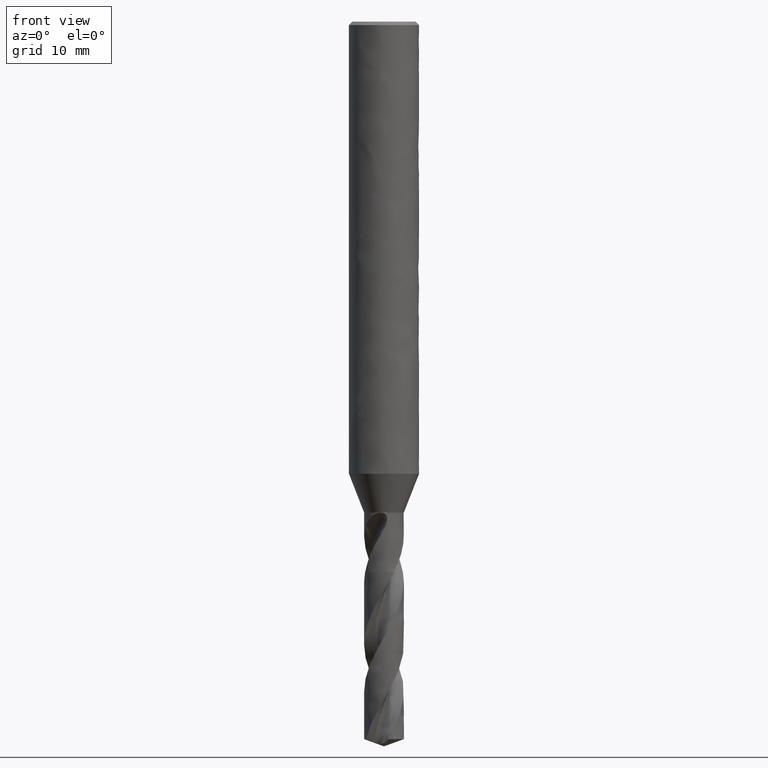
[diagram: clean part render]
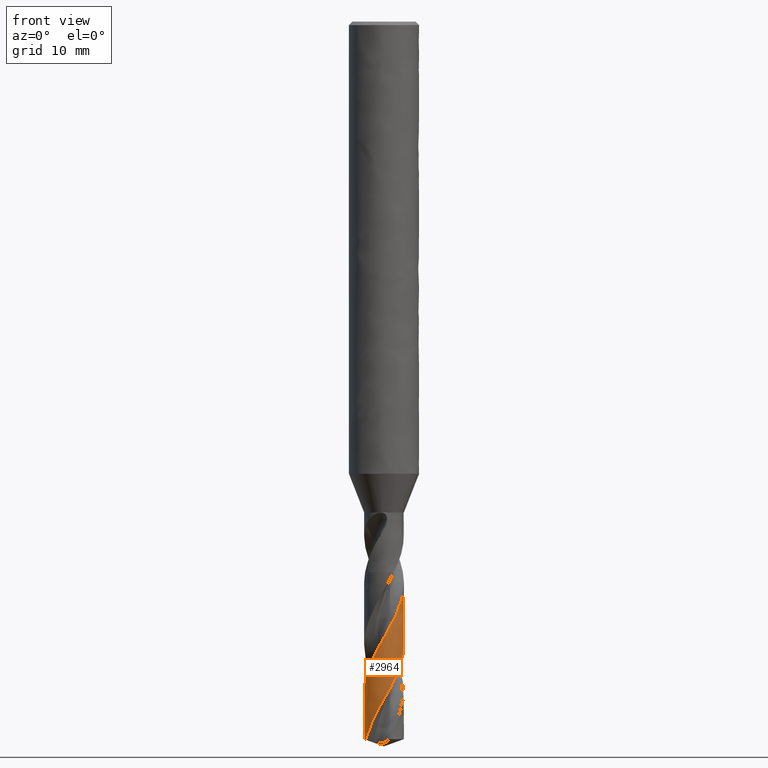
[diagram: same view with one face highlighted and labeled with its STEP entity id]
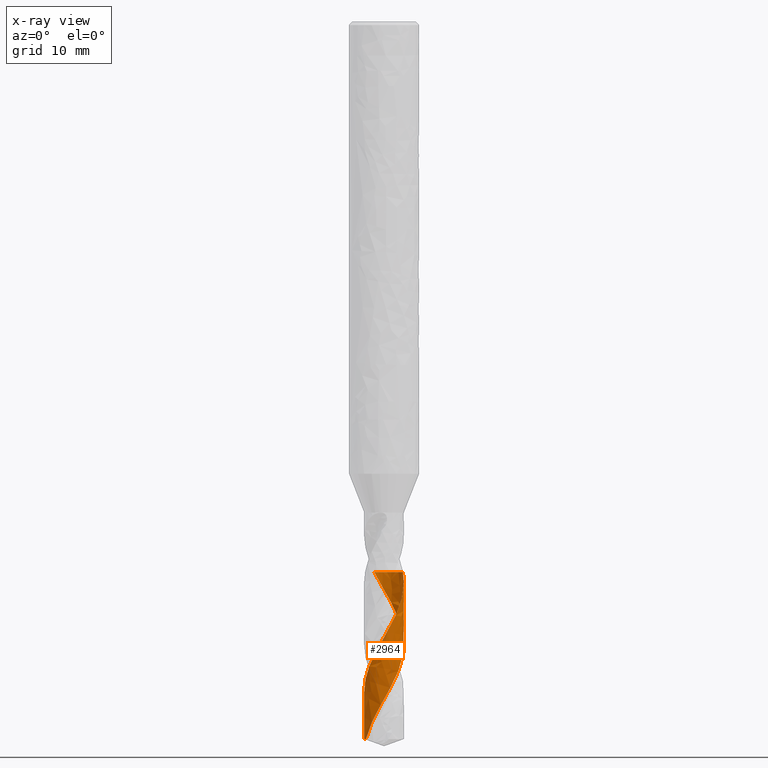
[diagram: x-ray of the same camera — body ghosted, the highlighted face saturated]
A machine part, front view. The second image highlights one B-rep face of the part: STEP entity #2964.
The next image is the same camera in x-ray: the body ghosted, the highlighted face saturated — about 0% of this face is hidden behind the body in this view.
In plain terms, the highlighted face is a freeform B-spline surface patch.
Its self-contained STEP definition (entity closure, byte-faithful):
#1735 = VERTEX_POINT('', #1736);
#1736 = CARTESIAN_POINT('', (1.61794167034545, 0.521789949462205, -47.1));
#1788 = EDGE_CURVE('', #1789, #1735, #1791, .T.);
#1789 = VERTEX_POINT('', #1790);
#1790 = CARTESIAN_POINT('', (-0.83333927921232, 1.48173737407209, -47.1));
#1791 = CIRCLE('', #1792, 1.7);
#1792 = AXIS2_PLACEMENT_3D('', #1793, #1794, #1795);
#1793 = CARTESIAN_POINT('', (1.76596714408434E-31, 2.88404321199202E-15, -47.1));
#1794 = DIRECTION('', (3.74939945665464E-33, 6.12323399573677E-17, -1.));
#1795 = DIRECTION('', (-1., 6.12323399573677E-17, 0.));
#2703 = EDGE_CURVE('', #2704, #1789, #2706, .T.);
#2704 = VERTEX_POINT('', #2705);
#2705 = CARTESIAN_POINT('', (-1.54745613297842, -0.703832022934077, -61.3812506017475));
#2706 = B_SPLINE_CURVE_WITH_KNOTS('', 3, (#2707, #2708, #2709, #2710, #2711, #2712, #2713, #2714, #2715, #2716, #2717, #2718, #2719, #2720, #2721, #2722, #2723, #2724, #2725, #2726, #2727, #2728, #2729, #2730, #2731, #2732, #2733, #2734, #2735, #2736, #2737, #2738, #2739, #2740, #2741, #2742, #2743, #2744, #2745, #2746, #2747, #2748, #2749, #2750, #2751, #2752, #2753, #2754, #2755, #2756, #2757, #2758, #2759, #2760, #2761, #2762, #2763, #2764, #2765, #2766, #2767, #2768, #2769, #2770, #2771, #2772, #2773, #2774, #2775, #2776, #2777, #2778, #2779, #2780, #2781, #2782, #2783, #2784, #2785, #2786, #2787, #2788, #2789, #2790, #2791, #2792, #2793, #2794, #2795, #2796, #2797, #2798, #2799, #2800, #2801, #2802, #2803, #2804, #2805, #2806, #2807, #2808, #2809, #2810, #2811, #2812, #2813, #2814, #2815, #2816, #2817, #2818, #2819, #2820, #2821, #2822, #2823, #2824, #2825, #2826, #2827, #2828, #2829, #2830, #2831, #2832, #2833, #2834, #2835, #2836), .UNSPECIFIED., .F., .U., (4, 3, 3, 3, 3, 3, 3, 3, 3, 3, 3, 3, 3, 3, 3, 3, 3, 3, 3, 3, 3, 3, 3, 3, 3, 3, 3, 3, 3, 3, 3, 3, 3, 3, 3, 3, 3, 3, 3, 3, 3, 3, 3, 4), (0., 0.443855790502764, 0.887479978240724, 1.3308775704706, 1.77405175161669, 2.21700390870566, 2.65973327549885, 3.10223721717116, 3.5445113162908, 3.83951307066638, 3.92703653370086, 3.9659660523632, 4.41064252871552, 4.85505149494598, 5.29920647054006, 5.74311807012562, 6.18679437768886, 6.63024095143792, 7.07346128847012, 7.51645706532043, 7.95922814347862, 8.40177239835613, 8.84408561522052, 9.28616162750826, 9.32507475129174, 9.76977848595117, 10.2142110750444, 10.658386380776, 11.1023152763683, 11.5460060314761, 11.9894645451014, 12.4326944599591, 12.8756975283897, 13.318473651278, 13.7610208179025, 14.2033349138989, 14.6454097533524, 14.6843224505492, 14.7232480170564, 15.1679462903109, 15.6123713601812, 16.0565379813851, 16.3523824521783, 16.4435746321485), .UNSPECIFIED.);
#2707 = CARTESIAN_POINT('', (-1.54745613297842, -0.703832022934077, -61.3812506017475));
#2708 = CARTESIAN_POINT('', (-1.51719500136275, -0.770364621883359, -61.2526137064541));
#2709 = CARTESIAN_POINT('', (-1.48261573489812, -0.834982129498396, -61.1239159264737));
#2710 = CARTESIAN_POINT('', (-1.44403775757455, -0.897081353445189, -60.9952877814543));
#2711 = CARTESIAN_POINT('', (-1.40547991013641, -0.959148174182953, -60.866726754257));
#2712 = CARTESIAN_POINT('', (-1.36288876155964, -1.01876174480711, -60.7381048688128));
#2713 = CARTESIAN_POINT('', (-1.31665816858338, -1.07536564344536, -60.6095526752042));
#2714 = CARTESIAN_POINT('', (-1.27045118938877, -1.13194062979812, -60.481066143817));
#2715 = CARTESIAN_POINT('', (-1.22056236520932, -1.18556550802107, -60.3525186248025));
#2716 = CARTESIAN_POINT('', (-1.16745314445573, -1.23573992227346, -60.224040838472));
#2717 = CARTESIAN_POINT('', (-1.1143706834067, -1.28588905555802, -60.0956277871828));
#2718 = CARTESIAN_POINT('', (-1.05801812044709, -1.33264119179291, -59.9671538466761));
#2719 = CARTESIAN_POINT('', (-0.998917343973153, -1.37555957337718, -59.8387493852117));
#2720 = CARTESIAN_POINT('', (-0.939846176160388, -1.41845645345345, -59.7104092525838));
#2721 = CARTESIAN_POINT('', (-0.877970050105777, -1.4575665908223, -59.5820084843424));
#2722 = CARTESIAN_POINT('', (-0.813862629132365, -1.49252390965832, -59.453677041329));
#2723 = CARTESIAN_POINT('', (-0.749787452073, -1.52746364611828, -59.3254101447902));
#2724 = CARTESIAN_POINT('', (-0.683418610607546, -1.55828998206004, -59.1970826244874));
#2725 = CARTESIAN_POINT('', (-0.615371266234494, -1.58471391888034, -59.068824506875));
#2726 = CARTESIAN_POINT('', (-0.54735856962141, -1.61112440138837, -58.9406316946248));
#2727 = CARTESIAN_POINT('', (-0.477601023925604, -1.63316341553257, -58.8123781193028));
#2728 = CARTESIAN_POINT('', (-0.40674471245827, -1.65062374237374, -58.6841940418543));
#2729 = CARTESIAN_POINT('', (-0.335925204720724, -1.66807500008419, -58.5560765449551));
#2730 = CARTESIAN_POINT('', (-0.263937543021006, -1.68096969858798, -58.427898286923));
#2731 = CARTESIAN_POINT('', (-0.191448538687783, -1.68918544187259, -58.299789396144));
#2732 = CARTESIAN_POINT('', (-0.143097564724338, -1.69466543422865, -58.214339337897));
#2733 = CARTESIAN_POINT('', (-0.0944969894662876, -1.69806914814064, -58.1288718363193));
#2734 = CARTESIAN_POINT('', (-0.0458473214287625, -1.69938165905073, -58.0434256745049));
#2735 = CARTESIAN_POINT('', (-0.0314135515986989, -1.69977106520991, -58.018074828708));
#2736 = CARTESIAN_POINT('', (-0.0169742386634315, -1.69997658123994, -57.9927236467865));
#2737 = CARTESIAN_POINT('', (-0.00253467222448865, -1.69999811042151, -57.967373120385));
#2738 = CARTESIAN_POINT('', (0.00388789552673641, -1.70000768637573, -57.9560974720454));
#2739 = CARTESIAN_POINT('', (0.0103105966062796, -1.6999808653333, -57.9448218099934));
#2740 = CARTESIAN_POINT('', (0.0167329719644538, -1.6999176473139, -57.9335462252219));
#2741 = CARTESIAN_POINT('', (0.0900932225459315, -1.69919553291134, -57.8047496852883));
#2742 = CARTESIAN_POINT('', (0.163451866771738, -1.69371426206621, -57.6758915370366));
#2743 = CARTESIAN_POINT('', (0.236119869536242, -1.68352232156598, -57.5471037960186));
#2744 = CARTESIAN_POINT('', (0.308744156414456, -1.67333651237108, -57.4183935316069));
#2745 = CARTESIAN_POINT('', (0.380752534179919, -1.65843535246851, -57.2896216053559));
#2746 = CARTESIAN_POINT('', (0.451469227871898, -1.63895562364723, -57.1609201705668));
#2747 = CARTESIAN_POINT('', (0.522145505237029, -1.61948702796928, -57.0322922918079));
#2748 = CARTESIAN_POINT('', (0.591602962531438, -1.59542544421399, -56.9036026643536));
#2749 = CARTESIAN_POINT('', (0.659190180338104, -1.56699339696944, -56.7749835356342));
#2750 = CARTESIAN_POINT('', (0.726740363532526, -1.53857692914774, -56.6464348841399));
#2751 = CARTESIAN_POINT('', (0.792490520582058, -1.5057660888902, -56.517824588984));
#2752 = CARTESIAN_POINT('', (0.855823658840124, -1.46886550268209, -56.3892845600827));
#2753 = CARTESIAN_POINT('', (0.919123227842073, -1.43198447535363, -56.260812662862));
#2754 = CARTESIAN_POINT('', (0.980072715375369, -1.39098050176546, -56.1322793443006));
#2755 = CARTESIAN_POINT('', (1.03809972196134, -1.346235108465, -56.0038161578495));
#2756 = CARTESIAN_POINT('', (1.09609668239583, -1.30151288414989, -55.8754194891216));
#2757 = CARTESIAN_POINT('', (1.15123322869522, -1.25300759473408, -55.7469614110329));
#2758 = CARTESIAN_POINT('', (1.20299156890888, -1.20117079765292, -55.6185735222176));
#2759 = CARTESIAN_POINT('', (1.25472350315245, -1.14936044656882, -55.4902511340876));
#2760 = CARTESIAN_POINT('', (1.30313301287765, -1.09416959305976, -55.3618672328411));
#2761 = CARTESIAN_POINT('', (1.34776553794473, -1.03611198947245, -55.2335535813177));
#2762 = CARTESIAN_POINT('', (1.39237544968134, -0.978083801110327, -55.105304940658));
#2763 = CARTESIAN_POINT('', (1.43325716105305, -0.917133272083846, -54.9769948080813));
#2764 = CARTESIAN_POINT('', (1.47002641263872, -0.853828054203264, -54.8487547978359));
#2765 = CARTESIAN_POINT('', (1.50677701392754, -0.790554946334571, -54.7205798341759));
#2766 = CARTESIAN_POINT('', (1.53945652113562, -0.724865450716122, -54.5923435551941));
#2767 = CARTESIAN_POINT('', (1.56775706204456, -0.657371884407525, -54.4641772098654));
#2768 = CARTESIAN_POINT('', (1.59604310511962, -0.58991289378124, -54.3360765217405));
#2769 = CARTESIAN_POINT('', (1.61998344052576, -0.520583041336398, -54.207914637816));
#2770 = CARTESIAN_POINT('', (1.63935175979428, -0.450028674264102, -54.0798226730291));
#2771 = CARTESIAN_POINT('', (1.658709967491, -0.37951114134027, -53.9517975809056));
#2772 = CARTESIAN_POINT('', (1.67352056070708, -0.307698923098715, -53.8237112154031));
#2773 = CARTESIAN_POINT('', (1.68364254520465, -0.235261088956103, -53.6956948395652));
#2774 = CARTESIAN_POINT('', (1.69375910146504, -0.162862101913522, -53.5677471165939));
#2775 = CARTESIAN_POINT('', (1.69920227729253, -0.0897651915333878, -53.4397380886192));
#2776 = CARTESIAN_POINT('', (1.6999184502683, -0.0166511992788236, -53.3117990051389));
#2777 = CARTESIAN_POINT('', (1.69998149039462, -0.0102154421876785, -53.3005373459359));
#2778 = CARTESIAN_POINT('', (1.70000798282907, -0.00377924503434388, -53.2892756743182));
#2779 = CARTESIAN_POINT('', (1.69999792374985, 0.00265692419919436, -53.2780140787025));
#2780 = CARTESIAN_POINT('', (1.69988296741479, 0.0762102197655079, -53.1493152454662));
#2781 = CARTESIAN_POINT('', (1.69498431881302, 0.149801539334368, -53.0205540690697));
#2782 = CARTESIAN_POINT('', (1.6853452727004, 0.222735968777526, -52.8918639452379));
#2783 = CARTESIAN_POINT('', (1.67571210372443, 0.295625928508315, -52.7632522865814));
#2784 = CARTESIAN_POINT('', (1.66133440236526, 0.367934791998575, -52.6345784001286));
#2785 = CARTESIAN_POINT('', (1.6423448666304, 0.438979884565264, -52.5059755414076));
#2786 = CARTESIAN_POINT('', (1.62336632399485, 0.509983848914337, -52.377447131268));
#2787 = CARTESIAN_POINT('', (1.59976185567669, 0.579798249884648, -52.24885643421));
#2788 = CARTESIAN_POINT('', (1.57175102107992, 0.647764407585247, -52.1203368061391));
#2789 = CARTESIAN_POINT('', (1.54375572573886, 0.715692860464867, -51.991888475457));
#2790 = CARTESIAN_POINT('', (1.51133039122006, 0.781844419266338, -51.8633778557364));
#2791 = CARTESIAN_POINT('', (1.47477761781724, 0.845595043732699, -51.7349382295941));
#2792 = CARTESIAN_POINT('', (1.4382444527239, 0.909311469919226, -51.6065675033929));
#2793 = CARTESIAN_POINT('', (1.39755091374562, 0.970694658398143, -51.4781346251095));
#2794 = CARTESIAN_POINT('', (1.35307761437078, 1.02916518085712, -51.3497725508461));
#2795 = CARTESIAN_POINT('', (1.30862759369819, 1.0876050980338, -51.2214776652677));
#2796 = CARTESIAN_POINT('', (1.26035609232826, 1.1431954304642, -51.093120774665));
#2797 = CARTESIAN_POINT('', (1.20871510618999, 1.19541113934417, -50.9648346327018));
#2798 = CARTESIAN_POINT('', (1.15710074050307, 1.24759993150853, -50.8366146210598));
#2799 = CARTESIAN_POINT('', (1.1020674577192, 1.29647108589969, -50.708332569574));
#2800 = CARTESIAN_POINT('', (1.0441306134533, 1.34156299220336, -50.5801213133571));
#2801 = CARTESIAN_POINT('', (0.986223421441635, 1.38663182033136, -50.4519756760536));
#2802 = CARTESIAN_POINT('', (0.925356548109162, 1.42797126407599, -50.3237679616973));
#2803 = CARTESIAN_POINT('', (0.862100000706585, 1.46519063223245, -50.1956310257258));
#2804 = CARTESIAN_POINT('', (0.79887585892935, 1.50239093332076, -50.0675597328807));
#2805 = CARTESIAN_POINT('', (0.733199972425583, 1.53551332308396, -49.9394264509758));
#2806 = CARTESIAN_POINT('', (0.665687729539377, 1.56424417746745, -49.8113637881017));
#2807 = CARTESIAN_POINT('', (0.598210396735456, 1.59296017533828, -49.6833673454849));
#2808 = CARTESIAN_POINT('', (0.528829429945855, 1.61731860046022, -49.5553090659781));
#2809 = CARTESIAN_POINT('', (0.458195217708448, 1.63708800694086, -49.4273213051273));
#2810 = CARTESIAN_POINT('', (0.387598205483744, 1.65684700172228, -49.2994009499454));
#2811 = CARTESIAN_POINT('', (0.315676878784636, 1.67204207364504, -49.1714187862675));
#2812 = CARTESIAN_POINT('', (0.243105278144974, 1.68252780771614, -49.0435071548916));
#2813 = CARTESIAN_POINT('', (0.170572932935857, 1.69300786984391, -48.9156647134758));
#2814 = CARTESIAN_POINT('', (0.0973169292083758, 1.69879439915769, -48.7877604335949));
#2815 = CARTESIAN_POINT('', (0.0240235301981288, 1.69983024740614, -48.6599266848788));
#2816 = CARTESIAN_POINT('', (0.0175720346872496, 1.69992142574437, -48.6486743911236));
#2817 = CARTESIAN_POINT('', (0.0111199359008931, 1.69997587589494, -48.6374220856856));
#2818 = CARTESIAN_POINT('', (0.00466770486593204, 1.69999359190889, -48.6261698582002));
#2819 = CARTESIAN_POINT('', (-0.00178666006800062, 1.70001131378193, -48.6149139093482));
#2820 = CARTESIAN_POINT('', (-0.00824120911469558, 1.69999227735861, -48.6036579481733));
#2821 = CARTESIAN_POINT('', (-0.0146954707667304, 1.69993648208954, -48.5924020644346));
#2822 = CARTESIAN_POINT('', (-0.0884310453346141, 1.69929905887288, -48.4638112047073));
#2823 = CARTESIAN_POINT('', (-0.162170952586922, 1.69385364852566, -48.3351573494641));
#2824 = CARTESIAN_POINT('', (-0.23521521794177, 1.68364895428038, -48.2065752745674));
#2825 = CARTESIAN_POINT('', (-0.308214608059436, 1.67345052935784, -48.0780721949358));
#2826 = CARTESIAN_POINT('', (-0.380594680412574, 1.6584881150821, -47.9495061544313));
#2827 = CARTESIAN_POINT('', (-0.451668399984365, 1.63890074637109, -47.8210117122306));
#2828 = CARTESIAN_POINT('', (-0.52270078771129, 1.61932476839761, -47.6925919940261));
#2829 = CARTESIAN_POINT('', (-0.592503509361476, 1.59510836782826, -47.5641103353505));
#2830 = CARTESIAN_POINT('', (-0.660411383455294, 1.56647911080956, -47.4356995518386));
#2831 = CARTESIAN_POINT('', (-0.705642537970055, 1.5474101241105, -47.350169441113));
#2832 = CARTESIAN_POINT('', (-0.750058324082365, 1.52637561718153, -47.2646199496525));
#2833 = CARTESIAN_POINT('', (-0.793474676636037, 1.50346198406789, -47.17909294116));
#2834 = CARTESIAN_POINT('', (-0.806857491684458, 1.4963990021265, -47.1527297837555));
#2835 = CARTESIAN_POINT('', (-0.820148740154652, 1.48915582386157, -47.1263624316584));
#2836 = CARTESIAN_POINT('', (-0.83333927921232, 1.48173737407209, -47.1));
#2964 = ADVANCED_FACE('', (#2965), #3089, .T.);
#2965 = FACE_OUTER_BOUND('', #2966, .T.);
#2966 = EDGE_LOOP('', (#2967, #2968, #2983, #3073, #3081, #3088));
#2967 = ORIENTED_EDGE('', *, *, #1788, .T.);
#2968 = ORIENTED_EDGE('', *, *, #2969, .T.);
#2969 = EDGE_CURVE('', #1735, #2970, #2972, .T.);
#2970 = VERTEX_POINT('', #2971);
#2971 = CARTESIAN_POINT('', (1.69886078488604, 0.06222566654029, -47.9127110224979));
#2972 = B_SPLINE_CURVE_WITH_KNOTS('', 3, (#2973, #2974, #2975, #2976, #2977, #2978, #2979, #2980, #2981, #2982), .UNSPECIFIED., .F., .U., (4, 3, 3, 4), (2.04236680302544, 2.34638589182506, 2.78859609689633, 2.98010819698806), .UNSPECIFIED.);
#2973 = CARTESIAN_POINT('', (1.61794167034545, 0.521789949462205, -47.1));
#2974 = CARTESIAN_POINT('', (1.6334708824653, 0.473637700799258, -47.1878062558081));
#2975 = CARTESIAN_POINT('', (1.64685376451737, 0.424772247648373, -47.275669669243));
#2976 = CARTESIAN_POINT('', (1.65802509109485, 0.375436808664161, -47.3634816841506));
#2977 = CARTESIAN_POINT('', (1.67427431622163, 0.303676069308517, -47.4912084307615));
#2978 = CARTESIAN_POINT('', (1.6858619193593, 0.230826135235117, -47.6190052595892));
#2979 = CARTESIAN_POINT('', (1.69268063615451, 0.157582562447593, -47.7467418908916));
#2980 = CARTESIAN_POINT('', (1.69563368146737, 0.125862284892037, -47.8020619858122));
#2981 = CARTESIAN_POINT('', (1.69769483725328, 0.0940579123106205, -47.8573887116082));
#2982 = CARTESIAN_POINT('', (1.69886078488604, 0.0622256665403072, -47.9127110224979));
#2983 = ORIENTED_EDGE('', *, *, #2984, .T.);
#2984 = EDGE_CURVE('', #2970, #2985, #2987, .T.);
#2985 = VERTEX_POINT('', #2986);
#2986 = CARTESIAN_POINT('', (-1.7, 3.61594258659581E-15, -57.3528238691086));
#2987 = B_SPLINE_CURVE_WITH_KNOTS('', 3, (#2988, #2989, #2990, #2991, #2992, #2993, #2994, #2995, #2996, #2997, #2998, #2999, #3000, #3001, #3002, #3003, #3004, #3005, #3006, #3007, #3008, #3009, #3010, #3011, #3012, #3013, #3014, #3015, #3016, #3017, #3018, #3019, #3020, #3021, #3022, #3023, #3024, #3025, #3026, #3027, #3028, #3029, #3030, #3031, #3032, #3033, #3034, #3035, #3036, #3037, #3038, #3039, #3040, #3041, #3042, #3043, #3044, #3045, #3046, #3047, #3048, #3049, #3050, #3051, #3052, #3053, #3054, #3055, #3056, #3057, #3058, #3059, #3060, #3061, #3062, #3063, #3064, #3065, #3066, #3067, #3068, #3069, #3070, #3071, #3072), .UNSPECIFIED., .F., .U., (4, 3, 3, 3, 3, 3, 3, 3, 3, 3, 3, 3, 3, 3, 3, 3, 3, 3, 3, 3, 3, 3, 3, 3, 3, 3, 3, 3, 4), (0., 0.0875227971096528, 0.126435368884567, 0.571160989630309, 1.01560757641749, 1.45979064154353, 1.90372247642599, 2.34741246470946, 2.79086731448386, 3.23409170376424, 3.67708838597833, 4.1198581975599, 4.562399782532, 5.00470989360279, 5.44678331422093, 5.48569602098476, 5.52462868590279, 5.96931630055922, 6.41373106906465, 6.85788780974612, 7.30179827124288, 7.74547148913476, 8.18891392399083, 8.63213002198096, 9.07512234438862, 9.51789157782571, 9.96043637321658, 10.4027534882022, 10.8751037538745), .UNSPECIFIED.);
#2988 = CARTESIAN_POINT('', (1.69886078488604, 0.06222566654029, -47.9127110224979));
#2989 = CARTESIAN_POINT('', (1.69939363371415, 0.0476780364596563, -47.9379938291159));
#2990 = CARTESIAN_POINT('', (1.69973959947879, 0.0331237502886245, -47.9632774357015));
#2991 = CARTESIAN_POINT('', (1.69989859149617, 0.0185682155673112, -47.9885608079022));
#2992 = CARTESIAN_POINT('', (1.69996927923116, 0.0120968354438475, -47.9998017767464));
#2993 = CARTESIAN_POINT('', (1.70000301150221, 0.00562512486035935, -48.0110428484781));
#2994 = CARTESIAN_POINT('', (1.69999978927687, -0.000846438775510434, -48.0222839334675));
#2995 = CARTESIAN_POINT('', (1.69996296297372, -0.0748089147538567, -48.1507565137096));
#2996 = CARTESIAN_POINT('', (1.69508901628883, -0.148793916373206, -48.2793050165293));
#2997 = CARTESIAN_POINT('', (1.68542981123633, -0.222095365543418, -48.4077933443665));
#2998 = CARTESIAN_POINT('', (1.6757766666537, -0.295350823224551, -48.5362010548407));
#2999 = CARTESIAN_POINT('', (1.66133420484033, -0.368000214496219, -48.66468444378));
#3000 = CARTESIAN_POINT('', (1.6422452950393, -0.439352240145968, -48.7931079126163));
#3001 = CARTESIAN_POINT('', (1.62316770345146, -0.510661959689913, -48.9214552364964));
#3002 = CARTESIAN_POINT('', (1.59942921085625, -0.580750562964831, -49.0498778748653));
#3003 = CARTESIAN_POINT('', (1.5712607031152, -0.64895285101917, -49.1782408337951));
#3004 = CARTESIAN_POINT('', (1.54310812750129, -0.717116563813024, -49.306531190548));
#3005 = CARTESIAN_POINT('', (1.51050122095173, -0.783467259033401, -49.4348967369686));
#3006 = CARTESIAN_POINT('', (1.47375410781573, -0.847377619303536, -49.5632025841372));
#3007 = CARTESIAN_POINT('', (1.43702701388907, -0.91125316228404, -49.6914385324378));
#3008 = CARTESIAN_POINT('', (1.39612639397943, -0.972756934897044, -49.8197496536059));
#3009 = CARTESIAN_POINT('', (1.35144378258954, -1.03130970251428, -49.948001205252));
#3010 = CARTESIAN_POINT('', (1.30678485125308, -1.08983143943251, -50.0761847885431));
#3011 = CARTESIAN_POINT('', (1.25830196459289, -1.14546556807874, -50.2044432356738));
#3012 = CARTESIAN_POINT('', (1.20645746600384, -1.1976896019936, -50.3326424677819));
#3013 = CARTESIAN_POINT('', (1.15463991065098, -1.24988649543032, -50.4607750756138));
#3014 = CARTESIAN_POINT('', (1.09941058446716, -1.29873089994231, -50.5889821513937));
#3015 = CARTESIAN_POINT('', (1.04129456606687, -1.34376546565224, -50.7171303320816));
#3016 = CARTESIAN_POINT('', (0.983208404841364, -1.38877689479955, -50.8452126764866));
#3017 = CARTESIAN_POINT('', (0.922178375154768, -1.43002906855617, -50.9733692980174));
#3018 = CARTESIAN_POINT('', (0.858782409229758, -1.46713761235868, -51.1014670158322));
#3019 = CARTESIAN_POINT('', (0.795418910100699, -1.50422715186806, -51.2294991313267));
#3020 = CARTESIAN_POINT('', (0.729627089730126, -1.53721531461416, -51.3576055545399));
#3021 = CARTESIAN_POINT('', (0.662027448202009, -1.56579681243358, -51.4856531082399));
#3022 = CARTESIAN_POINT('', (0.594462651048065, -1.5943635778612, -51.6136346595652));
#3023 = CARTESIAN_POINT('', (0.525023192618594, -1.61855729992302, -51.7416903261044));
#3024 = CARTESIAN_POINT('', (0.454362186431121, -1.63815597656074, -51.8696874098981));
#3025 = CARTESIAN_POINT('', (0.383738139886149, -1.6577444019988, -51.9976175440867));
#3026 = CARTESIAN_POINT('', (0.311821672716614, -1.6727626060073, -52.1256213927542));
#3027 = CARTESIAN_POINT('', (0.239287907262539, -1.68307495300667, -52.2535670451363));
#3028 = CARTESIAN_POINT('', (0.166792956317443, -1.69338178162873, -52.3814442308168));
#3029 = CARTESIAN_POINT('', (0.0936069609197241, -1.69899839868276, -52.5093948198204));
#3030 = CARTESIAN_POINT('', (0.0204150953153199, -1.69987741436942, -52.6372873582544));
#3031 = CARTESIAN_POINT('', (0.013972514805097, -1.69995478812242, -52.6485448657481));
#3032 = CARTESIAN_POINT('', (0.00752956502467951, -1.69999553409924, -52.6598024732396));
#3033 = CARTESIAN_POINT('', (0.00108671706070629, -1.69999965266056, -52.6710600928126));
#3034 = CARTESIAN_POINT('', (-0.0053594354113281, -1.70000377333426, -52.6823234863685));
#3035 = CARTESIAN_POINT('', (-0.0118055372059552, -1.69997122904277, -52.6935869820076));
#3036 = CARTESIAN_POINT('', (-0.0182511165292678, -1.69990202563131, -52.7048504917245));
#3037 = CARTESIAN_POINT('', (-0.091872310978631, -1.69911158654796, -52.8335019282299));
#3038 = CARTESIAN_POINT('', (-0.165465842785313, -1.69352819285375, -52.9622282684352));
#3039 = CARTESIAN_POINT('', (-0.238337079559324, -1.68320986110084, -53.0908953273968));
#3040 = CARTESIAN_POINT('', (-0.311163604864394, -1.67289786034753, -53.2194834403509));
#3041 = CARTESIAN_POINT('', (-0.383343160118635, -1.6578462025014, -53.3481460929323));
#3042 = CARTESIAN_POINT('', (-0.454195949897991, -1.63820207517151, -53.4767498774122));
#3043 = CARTESIAN_POINT('', (-0.52500760245045, -1.61856935324889, -53.6052789943586));
#3044 = CARTESIAN_POINT('', (-0.594566910854379, -1.59432930093383, -53.7338822328174));
#3045 = CARTESIAN_POINT('', (-0.66222021772338, -1.56571529443875, -53.8624269196477));
#3046 = CARTESIAN_POINT('', (-0.729836011706202, -1.53711715404126, -53.9909003301069));
#3047 = CARTESIAN_POINT('', (-0.795617449865397, -1.50412056524949, -54.119447710185));
#3048 = CARTESIAN_POINT('', (-0.858948730661225, -1.46704024419771, -54.2479364843584));
#3049 = CARTESIAN_POINT('', (-0.922246164673387, -1.42997974036089, -54.3763565889631));
#3050 = CARTESIAN_POINT('', (-0.983160216753839, -1.38880238154337, -54.5048507301125));
#3051 = CARTESIAN_POINT('', (-1.04112307887852, -1.3438983349296, -54.6332863271091));
#3052 = CARTESIAN_POINT('', (-1.09905579078283, -1.29901764580458, -54.7616551164738));
#3053 = CARTESIAN_POINT('', (-1.15409882900586, -1.2503688911882, -54.8900976920667));
#3054 = CARTESIAN_POINT('', (-1.20574062744073, -1.19841125634685, -55.0184820769583));
#3055 = CARTESIAN_POINT('', (-1.25735606745365, -1.14648014113309, -55.1468009333461));
#3056 = CARTESIAN_POINT('', (-1.30562616830289, -1.09119077616216, -55.2751931440075));
#3057 = CARTESIAN_POINT('', (-1.35010353088549, -1.0330636262547, -55.403527558492));
#3058 = CARTESIAN_POINT('', (-1.39455843727175, -0.974965824191085, -55.531797178154));
#3059 = CARTESIAN_POINT('', (-1.43526978663374, -0.913973903806592, -55.6601399096634));
#3060 = CARTESIAN_POINT('', (-1.47186201086207, -0.850659873851506, -55.7884248712589));
#3061 = CARTESIAN_POINT('', (-1.50843580740843, -0.787377728561346, -55.9166452291161));
#3062 = CARTESIAN_POINT('', (-1.54093152385369, -0.721712111655638, -56.0449387540976));
#3063 = CARTESIAN_POINT('', (-1.56905150700529, -0.654276217177774, -56.1731744720505));
#3064 = CARTESIAN_POINT('', (-1.59715723624401, -0.58687450569922, -56.3013451878041));
#3065 = CARTESIAN_POINT('', (-1.62091972207275, -0.517637130601828, -56.4295889793415));
#3066 = CARTESIAN_POINT('', (-1.64012328847317, -0.447208674567142, -56.5577752138643));
#3067 = CARTESIAN_POINT('', (-1.65931697502453, -0.376816452557985, -56.6858954991451));
#3068 = CARTESIAN_POINT('', (-1.67397564902174, -0.30516389832529, -56.814088450387));
#3069 = CARTESIAN_POINT('', (-1.68396843724156, -0.232916943082037, -56.9422242832555));
#3070 = CARTESIAN_POINT('', (-1.69463973168287, -0.155764449210577, -57.0790604866197));
#3071 = CARTESIAN_POINT('', (-1.7, -0.0778562429359331, -57.2159701668472));
#3072 = CARTESIAN_POINT('', (-1.7, -1.22046646442752E-15, -57.3528238691086));
#3073 = ORIENTED_EDGE('', *, *, #3074, .T.);
#3074 = EDGE_CURVE('', #2985, #3075, #3077, .T.);
#3075 = VERTEX_POINT('', #3076);
#3076 = CARTESIAN_POINT('', (-1.7, 3.8626125817821E-15, -61.3812506017475));
#3077 = LINE('', #3078, #3079);
#3078 = CARTESIAN_POINT('', (-1.7, 3.61594258659581E-15, -57.3528238691086));
#3079 = VECTOR('', #3080, 4.02842673263883);
#3080 = DIRECTION('', (-2.22044604925031E-16, 2.46669995186289E-16, -4.02842673263883));
#3081 = ORIENTED_EDGE('', *, *, #3082, .F.);
#3082 = EDGE_CURVE('', #2704, #3075, #3083, .T.);
#3083 = CIRCLE('', #3084, 1.7);
#3084 = AXIS2_PLACEMENT_3D('', #3085, #3086, #3087);
#3085 = CARTESIAN_POINT('', (2.30142827654974E-31, 3.75851760385458E-15, -61.3812506017475));
#3086 = DIRECTION('', (3.74939945665464E-33, 6.12323399573677E-17, -1.));
#3087 = DIRECTION('', (-1., 6.12323399573677E-17, 0.));
#3088 = ORIENTED_EDGE('', *, *, #2703, .T.);
#3089 = (
   BOUNDED_SURFACE ()
   B_SPLINE_SURFACE (2, 1, ((#3090, #3091), (#3092, #3093), (#3094, #3095), (#3096, #3097), (#3098, #3099), (#3100, #3101), (#3102, #3103), (#3104, #3105), (#3106, #3107)), .UNSPECIFIED., .F., .F., .U.)
   B_SPLINE_SURFACE_WITH_KNOTS ((3, 2, 2, 2, 3), (2, 2), (1.77805495274546, 2.67035375555132, 5.34070751110265, 8.01106126665397, 10.6814150222053), (0.263140914113157, 1.), .UNSPECIFIED.)
   GEOMETRIC_REPRESENTATION_ITEM ()
   RATIONAL_B_SPLINE_SURFACE (((0.869666155743291, 0.869666155743291), (0.902129720470972, 0.902129720470972), (1., 1.), (0.707106781186548, 0.707106781186548), (1., 1.), (0.707106781186548, 0.707106781186548), (1., 1.), (0.707106781186548, 0.707106781186548), (1., 1.)))
   REPRESENTATION_ITEM ('')
   SURFACE ()
);
#3090 = CARTESIAN_POINT('', (-0.833339279212458, 1.48173737407196, -47.1));
#3091 = CARTESIAN_POINT('', (-0.833339279212458, 1.48173737407196, -61.3812506017475));
#3092 = CARTESIAN_POINT('', (-0.445252579991581, 1.7, -47.1));
#3093 = CARTESIAN_POINT('', (-0.445252579991581, 1.7, -61.3812506017475));
#3094 = CARTESIAN_POINT('', (1.84889274661175E-31, 1.7, -47.1));
#3095 = CARTESIAN_POINT('', (2.34193081237488E-31, 1.7, -61.3812506017475));
#3096 = CARTESIAN_POINT('', (1.7, 1.7, -47.1));
#3097 = CARTESIAN_POINT('', (1.7, 1.7, -61.3812506017475));
#3098 = CARTESIAN_POINT('', (1.7, 2.98813818991954E-15, -47.1));
#3099 = CARTESIAN_POINT('', (1.7, 3.8626125817821E-15, -61.3812506017475));
#3100 = CARTESIAN_POINT('', (1.7, -1.7, -47.1));
#3101 = CARTESIAN_POINT('', (1.7, -1.7, -61.3812506017475));
#3102 = CARTESIAN_POINT('', (2.0818995585505E-16, -1.7, -47.1));
#3103 = CARTESIAN_POINT('', (2.0818995585505E-16, -1.7, -61.3812506017475));
#3104 = CARTESIAN_POINT('', (-1.7, -1.7, -47.1));
#3105 = CARTESIAN_POINT('', (-1.7, -1.7, -61.3812506017475));
#3106 = CARTESIAN_POINT('', (-1.7, 2.98813818991954E-15, -47.1));
#3107 = CARTESIAN_POINT('', (-1.7, 3.8626125817821E-15, -61.3812506017475));